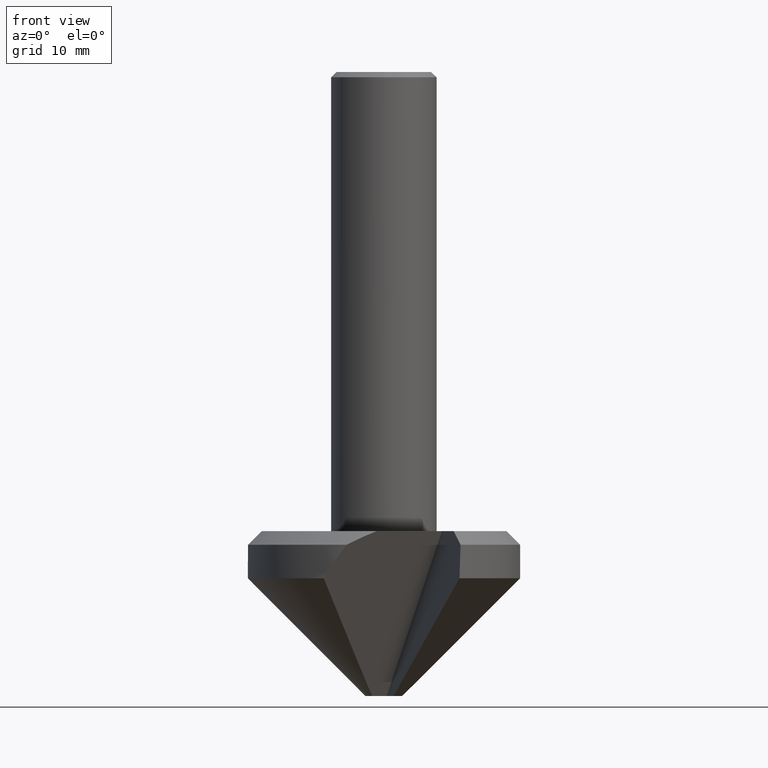
[diagram: clean part render]
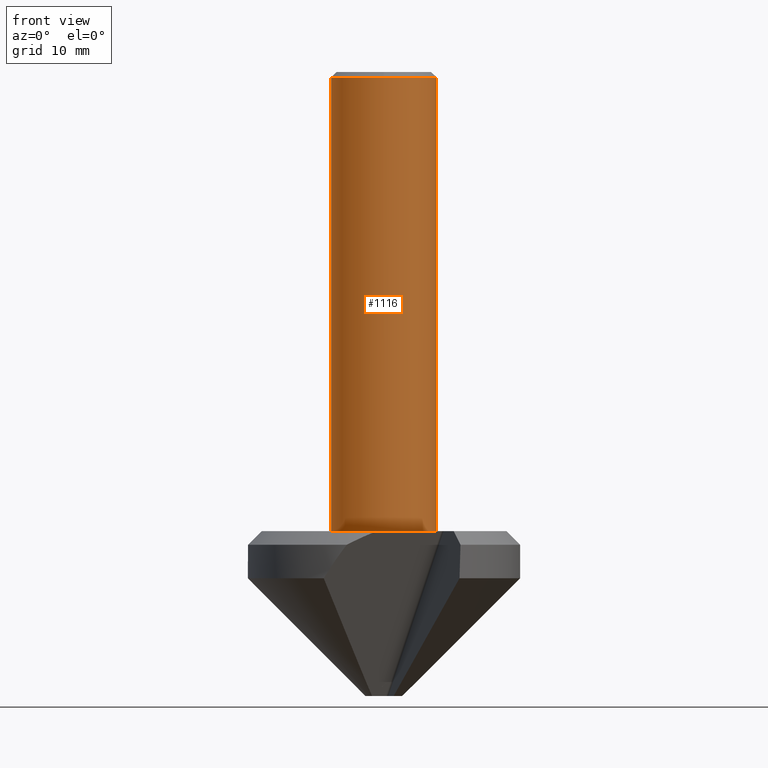
[diagram: same view with one face highlighted and labeled with its STEP entity id]
A machine part, front view. The second image highlights one B-rep face of the part: STEP entity #1116.
In plain terms, the highlighted cylindrical surface (partial cylindrical patch) has radius 6 mm, axis along (-0, -0, 1).
Its self-contained STEP definition (entity closure, byte-faithful):
#540=VERTEX_POINT('',#1309);
#598=EDGE_CURVE('',#738,#540,#1374,.T.);
#606=EDGE_CURVE('',#540,#918,#1382,.T.);
#622=EDGE_CURVE('',#738,#890,#1399,.T.);
#666=EDGE_CURVE('',#802,#890,#1446,.T.);
#738=VERTEX_POINT('',#1524);
#802=VERTEX_POINT('',#1597);
#890=VERTEX_POINT('',#1692);
#918=VERTEX_POINT('',#1721);
#988=EDGE_CURVE('',#918,#802,#1797,.T.);
#1116=ADVANCED_FACE('',(#1936),#1937,.T.);
#1309=CARTESIAN_POINT('',(6.0,7.34763812293426E-016,-0.600000000000001));
#1374=LINE('',#2414,#2415);
#1382=CIRCLE('',#2426,6.0);
#1399=CIRCLE('',#2474,6.0);
#1446=LINE('',#2591,#2592);
#1524=CARTESIAN_POINT('',(6.0,7.34763812293426E-016,-52.24));
#1597=CARTESIAN_POINT('',(-6.0,-7.34763812293426E-016,-0.600000000000001));
#1692=CARTESIAN_POINT('',(-6.0,0.0,-52.24));
#1721=CARTESIAN_POINT('',(7.34763812293426E-016,-6.0,-0.600000000000001));
#1797=CIRCLE('',#3399,6.0);
#1936=FACE_OUTER_BOUND('',#3765,.T.);
#1937=CYLINDRICAL_SURFACE('',#3766,6.0);
#2414=CARTESIAN_POINT('',(6.0,7.34763812293426E-016,-48.62));
#2415=VECTOR('',#4071,1.0);
#2426=AXIS2_PLACEMENT_3D('',#4073,#4074,#4075);
#2474=AXIS2_PLACEMENT_3D('',#4093,#4094,#4095);
#2591=CARTESIAN_POINT('',(-6.0,-7.34763812293426E-016,-48.62));
#2592=VECTOR('',#4137,1.0);
#3399=AXIS2_PLACEMENT_3D('',#4510,#4511,#4512);
#3765=EDGE_LOOP('',(#4678,#4679,#4680,#4681,#4682));
#3766=AXIS2_PLACEMENT_3D('',#4683,#4684,#4685);
#4071=DIRECTION('',(-0.0,-0.0,1.0));
#4073=CARTESIAN_POINT('',(0.0,0.0,-0.600000000000001));
#4074=DIRECTION('',(0.0,0.0,-1.0));
#4075=DIRECTION('',(0.0,1.0,0.0));
#4093=CARTESIAN_POINT('',(0.0,0.0,-52.24));
#4094=DIRECTION('',(0.0,0.0,-1.0));
#4095=DIRECTION('',(-1.0,0.0,0.0));
#4137=DIRECTION('',(0.0,0.0,-1.0));
#4510=CARTESIAN_POINT('',(0.0,0.0,-0.600000000000001));
#4511=DIRECTION('',(0.0,0.0,-1.0));
#4512=DIRECTION('',(0.0,1.0,0.0));
#4678=ORIENTED_EDGE('',*,*,#666,.T.);
#4679=ORIENTED_EDGE('',*,*,#622,.F.);
#4680=ORIENTED_EDGE('',*,*,#598,.T.);
#4681=ORIENTED_EDGE('',*,*,#606,.T.);
#4682=ORIENTED_EDGE('',*,*,#988,.T.);
#4683=CARTESIAN_POINT('',(0.0,0.0,-48.62));
#4684=DIRECTION('',(-0.0,-0.0,1.0));
#4685=DIRECTION('',(-1.0,0.0,0.0));